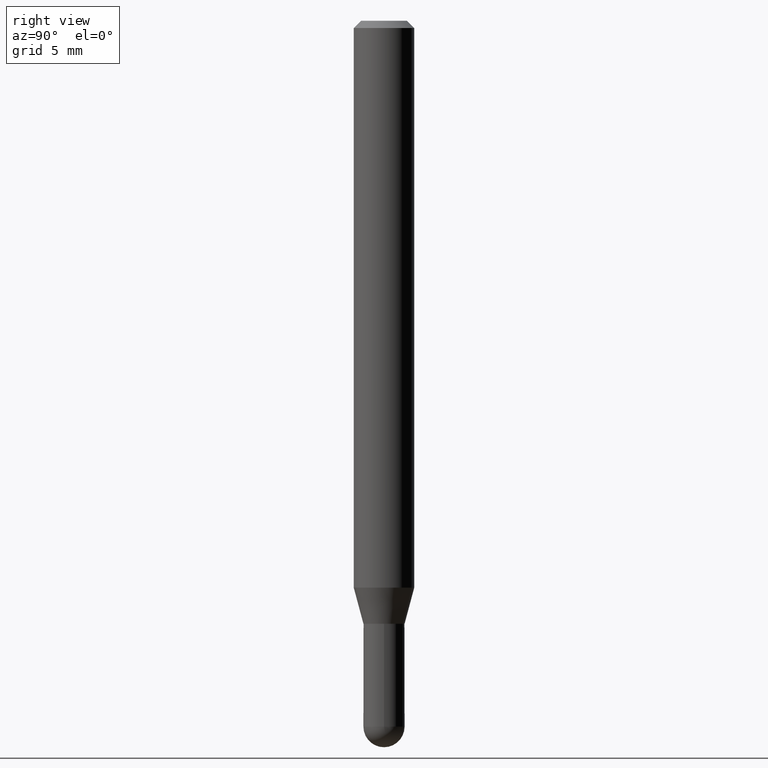
[diagram: clean part render]
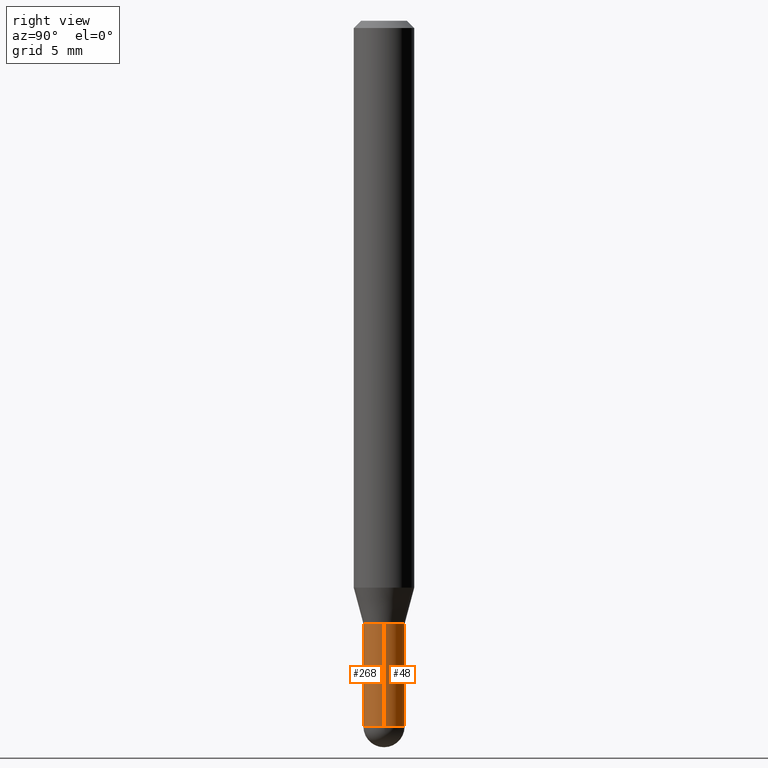
[diagram: same view with one multi-face feature highlighted, each face labeled with its STEP entity id]
A machine part, right view. The highlighted faces form ONE feature: a constant-radius fillet chain: 2 tangent blend faces with common blend radius 1.0795 mm. The faces share edges in the B-rep.
Their STEP definitions:
[1] entity #268 (Cylinder):
#5 = CARTESIAN_POINT ( 'NONE',  ( -0.04250000000000000999, 3.019806626980426500E-16, -2.090547413358335560E-30 ) ) ;
#14 = VERTEX_POINT ( 'NONE', #153 ) ;
#18 = DIRECTION ( 'NONE',  ( 1.000000000000000000, -6.982962677686265133E-15, 0.000000000000000000 ) ) ;
#43 = VERTEX_POINT ( 'NONE', #224 ) ;
#88 = VECTOR ( 'NONE', #361, 39.37007874015748143 ) ;
#91 = CARTESIAN_POINT ( 'NONE',  ( 3.564270785014837509E-29, -5.088834051363884851E-15, -1.457500000000000240 ) ) ;
#97 = CIRCLE ( 'NONE', #178, 0.04250000000000000999 ) ;
#111 = VERTEX_POINT ( 'NONE', #470 ) ;
#119 = LINE ( 'NONE', #250, #88 ) ;
#126 = FACE_OUTER_BOUND ( 'NONE', #360, .T. ) ;
#139 = ORIENTED_EDGE ( 'NONE', *, *, #387, .T. ) ;
#142 = ORIENTED_EDGE ( 'NONE', *, *, #313, .T. ) ;
#153 = CARTESIAN_POINT ( 'NONE',  ( 0.04250000000000000999, -5.014640072913468189E-15, -1.457500000000000240 ) ) ;
#173 = CARTESIAN_POINT ( 'NONE',  ( 0.000000000000000000, 0.000000000000000000, 0.000000000000000000 ) ) ;
#178 = AXIS2_PLACEMENT_3D ( 'NONE', #369, #288, #406 ) ;
#213 = EDGE_CURVE ( 'NONE', #43, #401, #285, .T. ) ;
#224 = CARTESIAN_POINT ( 'NONE',  ( -0.04250000000000000999, -4.415883496413759874E-15, -1.457500000000000240 ) ) ;
#250 = CARTESIAN_POINT ( 'NONE',  ( 0.04250000000000000999, -2.967759138016664042E-16, 2.072375129713273202E-30 ) ) ;
#253 = AXIS2_PLACEMENT_3D ( 'NONE', #91, #290, #410 ) ;
#257 = ORIENTED_EDGE ( 'NONE', *, *, #281, .T. ) ;
#261 = VECTOR ( 'NONE', #435, 39.37007874015748143 ) ;
#268 = ADVANCED_FACE ( 'NONE', ( #126 ), #312, .T. ) ;
#281 = EDGE_CURVE ( 'NONE', #14, #111, #119, .T. ) ;
#284 = CIRCLE ( 'NONE', #346, 0.04249999999999999611 ) ;
#285 = LINE ( 'NONE', #5, #261 ) ;
#288 = DIRECTION ( 'NONE',  ( -2.445468806185136597E-29, 3.491481338843145583E-15, 1.000000000000000000 ) ) ;
#290 = DIRECTION ( 'NONE',  ( -2.445468806185136597E-29, 3.491481338843145583E-15, 1.000000000000000000 ) ) ;
#294 = CIRCLE ( 'NONE', #253, 0.04250000000000000999 ) ;
#312 = CYLINDRICAL_SURFACE ( 'NONE', #403, 0.04250000000000000999 ) ;
#313 = EDGE_CURVE ( 'NONE', #498, #14, #294, .T. ) ;
#346 = AXIS2_PLACEMENT_3D ( 'NONE', #504, #467, #18 ) ;
#357 = CARTESIAN_POINT ( 'NONE',  ( -2.967759138016305604E-16, -0.04250000000000507538, -1.457500000000000018 ) ) ;
#360 = EDGE_LOOP ( 'NONE', ( #454, #139, #142, #257, #432 ) ) ;
#361 = DIRECTION ( 'NONE',  ( -2.445468806185136877E-29, 3.491481338843145188E-15, 1.000000000000000000 ) ) ;
#369 = CARTESIAN_POINT ( 'NONE',  ( 3.564270785014837509E-29, -5.088834051363884851E-15, -1.457500000000000240 ) ) ;
#387 = EDGE_CURVE ( 'NONE', #43, #498, #97, .T. ) ;
#397 = DIRECTION ( 'NONE',  ( -2.445468806185136597E-29, 3.491481338843145583E-15, 1.000000000000000000 ) ) ;
#401 = VERTEX_POINT ( 'NONE', #490 ) ;
#403 = AXIS2_PLACEMENT_3D ( 'NONE', #173, #397, #446 ) ;
#406 = DIRECTION ( 'NONE',  ( 1.000000000000000000, -6.982962677686273810E-15, 0.000000000000000000 ) ) ;
#410 = DIRECTION ( 'NONE',  ( 1.000000000000000000, -6.982962677686273810E-15, 0.000000000000000000 ) ) ;
#432 = ORIENTED_EDGE ( 'NONE', *, *, #476, .F. ) ;
#435 = DIRECTION ( 'NONE',  ( -2.445468806185136877E-29, 3.491481338843145188E-15, 1.000000000000000000 ) ) ;
#446 = DIRECTION ( 'NONE',  ( 1.000000000000000000, -6.982962677686266711E-15, 4.876176775795935793E-29 ) ) ;
#454 = ORIENTED_EDGE ( 'NONE', *, *, #213, .F. ) ;
#467 = DIRECTION ( 'NONE',  ( -2.445468806185136597E-29, 3.491481338843145583E-15, 1.000000000000000000 ) ) ;
#470 = CARTESIAN_POINT ( 'NONE',  ( 0.04249999999999999611, -4.643670180661383298E-15, -1.245000000000000329 ) ) ;
#476 = EDGE_CURVE ( 'NONE', #401, #111, #284, .T. ) ;
#490 = CARTESIAN_POINT ( 'NONE',  ( -0.04249999999999999611, -4.415883496413758296E-15, -1.245000000000000329 ) ) ;
#498 = VERTEX_POINT ( 'NONE', #357 ) ;
#504 = CARTESIAN_POINT ( 'NONE',  ( 3.044608663700495534E-29, -4.346894266859716647E-15, -1.245000000000000329 ) ) ;
[2] entity #48 (Cylinder):
#5 = CARTESIAN_POINT ( 'NONE',  ( -0.04250000000000000999, 3.019806626980426500E-16, -2.090547413358335560E-30 ) ) ;
#14 = VERTEX_POINT ( 'NONE', #153 ) ;
#21 = CIRCLE ( 'NONE', #422, 0.04249999999999999611 ) ;
#43 = VERTEX_POINT ( 'NONE', #224 ) ;
#48 = ADVANCED_FACE ( 'NONE', ( #66 ), #159, .T. ) ;
#66 = FACE_OUTER_BOUND ( 'NONE', #82, .T. ) ;
#82 = EDGE_LOOP ( 'NONE', ( #93, #151, #181, #371, #149 ) ) ;
#88 = VECTOR ( 'NONE', #361, 39.37007874015748143 ) ;
#93 = ORIENTED_EDGE ( 'NONE', *, *, #293, .T. ) ;
#111 = VERTEX_POINT ( 'NONE', #470 ) ;
#119 = LINE ( 'NONE', #250, #88 ) ;
#123 = DIRECTION ( 'NONE',  ( 1.000000000000000000, -6.982962677686265133E-15, 0.000000000000000000 ) ) ;
#131 = DIRECTION ( 'NONE',  ( 1.000000000000000000, -6.982962677686273810E-15, 0.000000000000000000 ) ) ;
#138 = CARTESIAN_POINT ( 'NONE',  ( 3.019806626980780501E-16, 0.04249999999999488215, -1.457500000000000462 ) ) ;
#149 = ORIENTED_EDGE ( 'NONE', *, *, #362, .T. ) ;
#151 = ORIENTED_EDGE ( 'NONE', *, *, #213, .T. ) ;
#153 = CARTESIAN_POINT ( 'NONE',  ( 0.04250000000000000999, -5.014640072913468189E-15, -1.457500000000000240 ) ) ;
#159 = CYLINDRICAL_SURFACE ( 'NONE', #344, 0.04250000000000000999 ) ;
#163 = AXIS2_PLACEMENT_3D ( 'NONE', #353, #279, #330 ) ;
#181 = ORIENTED_EDGE ( 'NONE', *, *, #189, .F. ) ;
#189 = EDGE_CURVE ( 'NONE', #111, #401, #21, .T. ) ;
#213 = EDGE_CURVE ( 'NONE', #43, #401, #285, .T. ) ;
#224 = CARTESIAN_POINT ( 'NONE',  ( -0.04250000000000000999, -4.415883496413759874E-15, -1.457500000000000240 ) ) ;
#250 = CARTESIAN_POINT ( 'NONE',  ( 0.04250000000000000999, -2.967759138016664042E-16, 2.072375129713273202E-30 ) ) ;
#259 = DIRECTION ( 'NONE',  ( -2.445468806185136597E-29, 3.491481338843145583E-15, 1.000000000000000000 ) ) ;
#261 = VECTOR ( 'NONE', #435, 39.37007874015748143 ) ;
#267 = CARTESIAN_POINT ( 'NONE',  ( 0.000000000000000000, 0.000000000000000000, 0.000000000000000000 ) ) ;
#279 = DIRECTION ( 'NONE',  ( -2.445468806185136597E-29, 3.491481338843145583E-15, 1.000000000000000000 ) ) ;
#281 = EDGE_CURVE ( 'NONE', #14, #111, #119, .T. ) ;
#285 = LINE ( 'NONE', #5, #261 ) ;
#293 = EDGE_CURVE ( 'NONE', #332, #43, #473, .T. ) ;
#298 = DIRECTION ( 'NONE',  ( -2.445468806185136597E-29, 3.491481338843145583E-15, 1.000000000000000000 ) ) ;
#317 = CARTESIAN_POINT ( 'NONE',  ( 3.044608663700495534E-29, -4.346894266859716647E-15, -1.245000000000000329 ) ) ;
#323 = AXIS2_PLACEMENT_3D ( 'NONE', #486, #259, #131 ) ;
#330 = DIRECTION ( 'NONE',  ( 1.000000000000000000, -6.982962677686273810E-15, 0.000000000000000000 ) ) ;
#332 = VERTEX_POINT ( 'NONE', #138 ) ;
#344 = AXIS2_PLACEMENT_3D ( 'NONE', #267, #298, #419 ) ;
#353 = CARTESIAN_POINT ( 'NONE',  ( 3.564270785014837509E-29, -5.088834051363884851E-15, -1.457500000000000240 ) ) ;
#361 = DIRECTION ( 'NONE',  ( -2.445468806185136877E-29, 3.491481338843145188E-15, 1.000000000000000000 ) ) ;
#362 = EDGE_CURVE ( 'NONE', #14, #332, #503, .T. ) ;
#371 = ORIENTED_EDGE ( 'NONE', *, *, #281, .F. ) ;
#401 = VERTEX_POINT ( 'NONE', #490 ) ;
#419 = DIRECTION ( 'NONE',  ( 1.000000000000000000, -6.982962677686266711E-15, 4.876176775795935793E-29 ) ) ;
#422 = AXIS2_PLACEMENT_3D ( 'NONE', #317, #479, #123 ) ;
#435 = DIRECTION ( 'NONE',  ( -2.445468806185136877E-29, 3.491481338843145188E-15, 1.000000000000000000 ) ) ;
#470 = CARTESIAN_POINT ( 'NONE',  ( 0.04249999999999999611, -4.643670180661383298E-15, -1.245000000000000329 ) ) ;
#473 = CIRCLE ( 'NONE', #163, 0.04250000000000000999 ) ;
#479 = DIRECTION ( 'NONE',  ( -2.445468806185136597E-29, 3.491481338843145583E-15, 1.000000000000000000 ) ) ;
#486 = CARTESIAN_POINT ( 'NONE',  ( 3.564270785014837509E-29, -5.088834051363884851E-15, -1.457500000000000240 ) ) ;
#490 = CARTESIAN_POINT ( 'NONE',  ( -0.04249999999999999611, -4.415883496413758296E-15, -1.245000000000000329 ) ) ;
#503 = CIRCLE ( 'NONE', #323, 0.04250000000000000999 ) ;